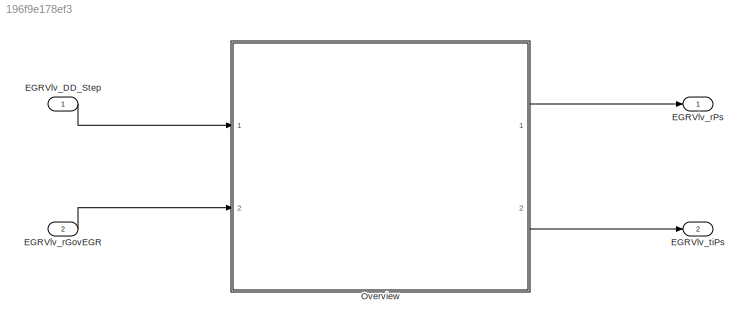
MODEL slx_196f9e178ef3
KIND model
CONFIG AbsTol = auto
CONFIG EnableMultiTasking = off
CONFIG FixedStep = 0.001
CONFIG MaxStep = auto
CONFIG MinStep = auto
CONFIG RelTol = 1e-3
CONFIG SampleTimeConstraint = Unconstrained
CONFIG SolverName = FixedStepDiscrete
CONFIG StartTime = 0.0
CONFIG StopTime = Inf
BLOCK [Inport] EGRVlv_DD_Step
  OutputFunctionCall = on
BLOCK [Inport] EGRVlv_rGovEGR
  Description = Control value for the EGR valve
  OutDataTypeStr = DutyCycle
  OutMax = 100
  OutMin = -100
  Port = 2
  PortDimensions = [1 1]
  Unit = %
BLOCK [Outport] EGRVlv_rPs
  Description = Duty cycle to power stage
  OutDataTypeStr = DutyCycle
  OutMax = 100
  OutMin = -100
  PortDimensions = [1 1]
  Unit = %
  VectorParamsAs1DForOutWhenUnconnected = off
BLOCK [Outport] EGRVlv_tiPs
  Description = signal period duration
  OutDataTypeStr = Period_us1
  OutMax = 1000
  OutMin = 0
  Port = 2
  PortDimensions = [1 1]
  Unit = us
  VectorParamsAs1DForOutWhenUnconnected = off
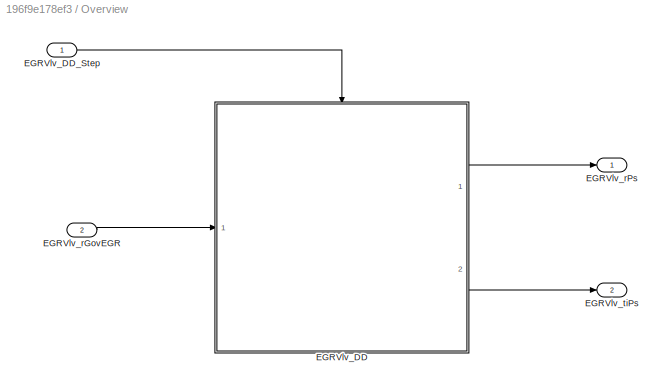
BLOCK [SubSystem] Overview
  Ports = [2, 2]
  RequestExecContextInheritance = off
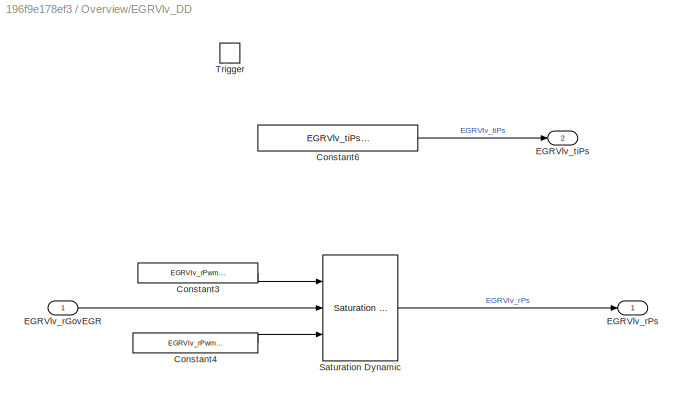
BLOCK [SubSystem] Overview/EGRVlv_DD
  Ports = [1, 2, 0, 1]
  RequestExecContextInheritance = off
BLOCK [Constant] Overview/EGRVlv_DD/Constant3
  SampleTime = -1
  Value = EGRVlv_rPwmOutMax_C
BLOCK [Constant] Overview/EGRVlv_DD/Constant4
  SampleTime = -1
  Value = EGRVlv_rPwmOutMin_C
BLOCK [Constant] Overview/EGRVlv_DD/Constant6
  SampleTime = -1
  Value = EGRVlv_tiPs_C
BLOCK [Inport] Overview/EGRVlv_DD/EGRVlv_rGovEGR
  Tag = %
BLOCK [Outport] Overview/EGRVlv_DD/EGRVlv_rPs
  Tag = kPa
  VectorParamsAs1DForOutWhenUnconnected = off
BLOCK [Outport] Overview/EGRVlv_DD/EGRVlv_tiPs
  Port = 2
  Tag = %
  VectorParamsAs1DForOutWhenUnconnected = off
BLOCK [Reference] Overview/EGRVlv_DD/Saturation Dynamic  REF=simulink/Discontinuities/Saturation
Dynamic
  Ports = [3, 1]
  SourceBlock = simulink/Discontinuities/Saturation\nDynamic
  SourceProductBaseCode = SL
  SourceType = Saturation Dynamic
BLOCK [TriggerPort] Overview/EGRVlv_DD/Trigger
  PortDimensions = 1
  Ports = []
  StatesWhenEnabling = held
  TriggerType = function-call
  VariantControl = Variant
BLOCK [Inport] Overview/EGRVlv_DD_Step
BLOCK [Inport] Overview/EGRVlv_rGovEGR
  Description = Control value for the EGR valve
  OutDataTypeStr = DutyCycle
  OutMax = 100
  OutMin = -100
  Port = 2
  PortDimensions = [1 1]
  Tag = %
  Unit = %
BLOCK [Outport] Overview/EGRVlv_rPs
  Tag = %
  VectorParamsAs1DForOutWhenUnconnected = off
BLOCK [Outport] Overview/EGRVlv_tiPs
  Port = 2
  Tag = us
  VectorParamsAs1DForOutWhenUnconnected = off
LINE EGRVlv_DD_Step:1 -> Overview:1
LINE EGRVlv_rGovEGR:1 -> Overview:2
LINE Overview/EGRVlv_DD/Constant3:1 -> Overview/EGRVlv_DD/Saturation Dynamic:1
LINE Overview/EGRVlv_DD/Constant4:1 -> Overview/EGRVlv_DD/Saturation Dynamic:3
LINE Overview/EGRVlv_DD/Constant6:1 -> Overview/EGRVlv_DD/EGRVlv_tiPs:1
LINE Overview/EGRVlv_DD/EGRVlv_rGovEGR:1 -> Overview/EGRVlv_DD/Saturation Dynamic:2
LINE Overview/EGRVlv_DD/Saturation Dynamic:1 -> Overview/EGRVlv_DD/EGRVlv_rPs:1
LINE Overview/EGRVlv_DD:1 -> Overview/EGRVlv_rPs:1
LINE Overview/EGRVlv_DD:2 -> Overview/EGRVlv_tiPs:1
LINE Overview/EGRVlv_DD_Step:1 -> Overview/EGRVlv_DD:trigger
LINE Overview/EGRVlv_rGovEGR:1 -> Overview/EGRVlv_DD:1
LINE Overview:1 -> EGRVlv_rPs:1
LINE Overview:2 -> EGRVlv_tiPs:1
